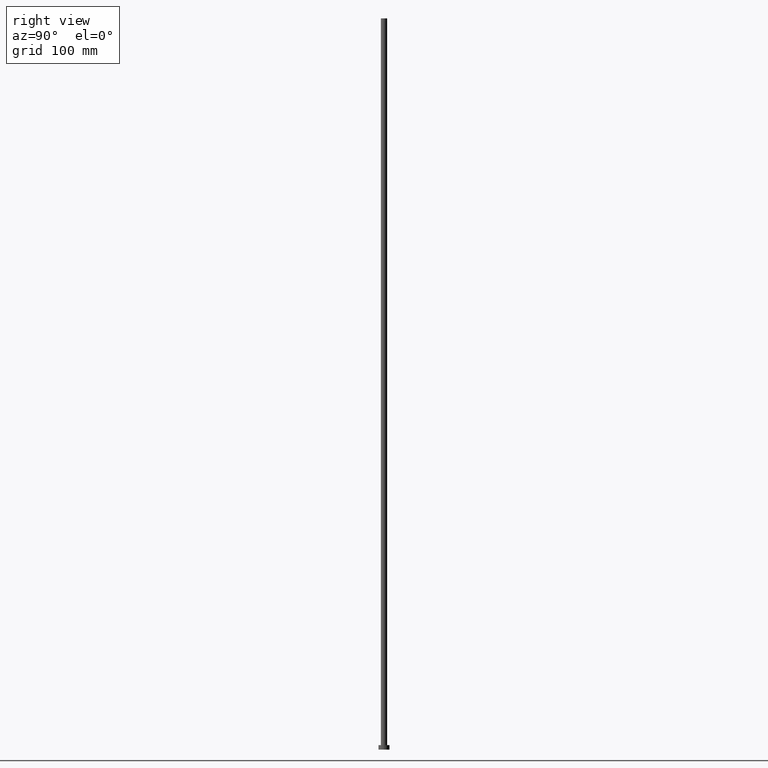
[diagram: clean part render]
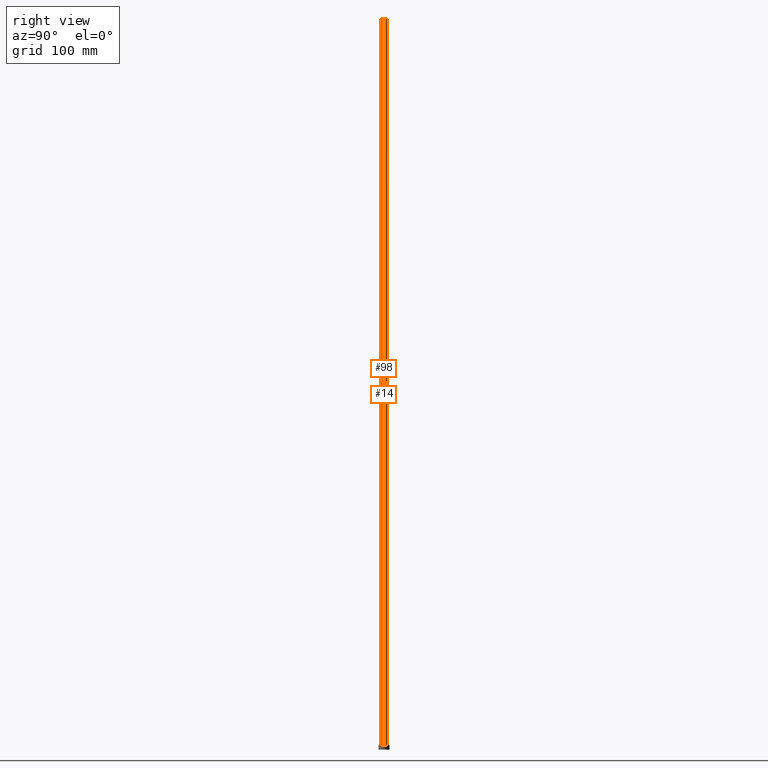
[diagram: same view with one multi-face feature highlighted, each face labeled with its STEP entity id]
A machine part, right view. The highlighted faces form ONE feature: a constant-radius fillet chain: 2 tangent blend faces with common blend radius 3.5 mm. The faces share edges in the B-rep.
Their STEP definitions:
[1] entity #98 (Cylinder):
#11 = EDGE_CURVE ( 'NONE', #70, #186, #55, .T. ) ;
#19 = CYLINDRICAL_SURFACE ( 'NONE', #106, 3.500000000000000000 ) ;
#27 = VERTEX_POINT ( 'NONE', #179 ) ;
#37 = VECTOR ( 'NONE', #173, 1000.000000000000000 ) ;
#44 = CARTESIAN_POINT ( 'NONE',  ( 3.500000000000000000, 4.286263797015736595E-16, 800.0000000000000000 ) ) ;
#55 = CIRCLE ( 'NONE', #252, 3.500000000000000000 ) ;
#62 = CARTESIAN_POINT ( 'NONE',  ( -3.500000000000000000, 0.000000000000000000, 800.0000000000000000 ) ) ;
#67 = EDGE_LOOP ( 'NONE', ( #86, #162, #113, #219 ) ) ;
#70 = VERTEX_POINT ( 'NONE', #62 ) ;
#86 = ORIENTED_EDGE ( 'NONE', *, *, #230, .F. ) ;
#91 = VECTOR ( 'NONE', #215, 1000.000000000000000 ) ;
#96 = DIRECTION ( 'NONE',  ( -0.000000000000000000, -0.000000000000000000, -1.000000000000000000 ) ) ;
#98 = ADVANCED_FACE ( 'NONE', ( #114 ), #19, .T. ) ;
#106 = AXIS2_PLACEMENT_3D ( 'NONE', #244, #96, #237 ) ;
#113 = ORIENTED_EDGE ( 'NONE', *, *, #149, .T. ) ;
#114 = FACE_OUTER_BOUND ( 'NONE', #67, .T. ) ;
#121 = CARTESIAN_POINT ( 'NONE',  ( 3.500000000000000000, 4.286263797015736595E-16, 5.000000000000000000 ) ) ;
#123 = DIRECTION ( 'NONE',  ( 1.000000000000000000, 0.000000000000000000, 0.000000000000000000 ) ) ;
#126 = EDGE_CURVE ( 'NONE', #27, #157, #148, .T. ) ;
#136 = LINE ( 'NONE', #221, #91 ) ;
#142 = DIRECTION ( 'NONE',  ( 0.000000000000000000, 0.000000000000000000, 1.000000000000000000 ) ) ;
#148 = CIRCLE ( 'NONE', #224, 3.500000000000000000 ) ;
#149 = EDGE_CURVE ( 'NONE', #70, #27, #136, .T. ) ;
#157 = VERTEX_POINT ( 'NONE', #121 ) ;
#162 = ORIENTED_EDGE ( 'NONE', *, *, #11, .F. ) ;
#165 = DIRECTION ( 'NONE',  ( 0.000000000000000000, 0.000000000000000000, 1.000000000000000000 ) ) ;
#173 = DIRECTION ( 'NONE',  ( -0.000000000000000000, -0.000000000000000000, -1.000000000000000000 ) ) ;
#179 = CARTESIAN_POINT ( 'NONE',  ( -3.500000000000000000, 0.000000000000000000, 5.000000000000000000 ) ) ;
#186 = VERTEX_POINT ( 'NONE', #236 ) ;
#199 = CARTESIAN_POINT ( 'NONE',  ( 0.000000000000000000, 0.000000000000000000, 5.000000000000000000 ) ) ;
#210 = LINE ( 'NONE', #44, #37 ) ;
#215 = DIRECTION ( 'NONE',  ( -0.000000000000000000, -0.000000000000000000, -1.000000000000000000 ) ) ;
#219 = ORIENTED_EDGE ( 'NONE', *, *, #126, .T. ) ;
#221 = CARTESIAN_POINT ( 'NONE',  ( -3.500000000000000000, 0.000000000000000000, 800.0000000000000000 ) ) ;
#224 = AXIS2_PLACEMENT_3D ( 'NONE', #199, #142, #123 ) ;
#230 = EDGE_CURVE ( 'NONE', #186, #157, #210, .T. ) ;
#236 = CARTESIAN_POINT ( 'NONE',  ( 3.500000000000000000, 4.286263797015736595E-16, 800.0000000000000000 ) ) ;
#237 = DIRECTION ( 'NONE',  ( -1.000000000000000000, 0.000000000000000000, 0.000000000000000000 ) ) ;
#243 = CARTESIAN_POINT ( 'NONE',  ( 0.000000000000000000, 0.000000000000000000, 800.0000000000000000 ) ) ;
#244 = CARTESIAN_POINT ( 'NONE',  ( 0.000000000000000000, 0.000000000000000000, 800.0000000000000000 ) ) ;
#250 = DIRECTION ( 'NONE',  ( 1.000000000000000000, 0.000000000000000000, 0.000000000000000000 ) ) ;
#252 = AXIS2_PLACEMENT_3D ( 'NONE', #243, #165, #250 ) ;
[2] entity #14 (Cylinder):
#8 = ORIENTED_EDGE ( 'NONE', *, *, #230, .T. ) ;
#14 = ADVANCED_FACE ( 'NONE', ( #131 ), #15, .T. ) ;
#15 = CYLINDRICAL_SURFACE ( 'NONE', #156, 3.500000000000000000 ) ;
#18 = EDGE_CURVE ( 'NONE', #186, #70, #192, .T. ) ;
#21 = CARTESIAN_POINT ( 'NONE',  ( 0.000000000000000000, 0.000000000000000000, 5.000000000000000000 ) ) ;
#26 = DIRECTION ( 'NONE',  ( 1.000000000000000000, 0.000000000000000000, 0.000000000000000000 ) ) ;
#27 = VERTEX_POINT ( 'NONE', #179 ) ;
#37 = VECTOR ( 'NONE', #173, 1000.000000000000000 ) ;
#44 = CARTESIAN_POINT ( 'NONE',  ( 3.500000000000000000, 4.286263797015736595E-16, 800.0000000000000000 ) ) ;
#47 = EDGE_LOOP ( 'NONE', ( #242, #8, #225, #147 ) ) ;
#62 = CARTESIAN_POINT ( 'NONE',  ( -3.500000000000000000, 0.000000000000000000, 800.0000000000000000 ) ) ;
#63 = AXIS2_PLACEMENT_3D ( 'NONE', #21, #83, #240 ) ;
#70 = VERTEX_POINT ( 'NONE', #62 ) ;
#78 = CARTESIAN_POINT ( 'NONE',  ( 0.000000000000000000, 0.000000000000000000, 800.0000000000000000 ) ) ;
#83 = DIRECTION ( 'NONE',  ( 0.000000000000000000, 0.000000000000000000, 1.000000000000000000 ) ) ;
#91 = VECTOR ( 'NONE', #215, 1000.000000000000000 ) ;
#109 = DIRECTION ( 'NONE',  ( -0.000000000000000000, -0.000000000000000000, -1.000000000000000000 ) ) ;
#121 = CARTESIAN_POINT ( 'NONE',  ( 3.500000000000000000, 4.286263797015736595E-16, 5.000000000000000000 ) ) ;
#131 = FACE_OUTER_BOUND ( 'NONE', #47, .T. ) ;
#136 = LINE ( 'NONE', #221, #91 ) ;
#147 = ORIENTED_EDGE ( 'NONE', *, *, #149, .F. ) ;
#149 = EDGE_CURVE ( 'NONE', #70, #27, #136, .T. ) ;
#152 = EDGE_CURVE ( 'NONE', #157, #27, #184, .T. ) ;
#156 = AXIS2_PLACEMENT_3D ( 'NONE', #228, #109, #203 ) ;
#157 = VERTEX_POINT ( 'NONE', #121 ) ;
#158 = DIRECTION ( 'NONE',  ( 0.000000000000000000, 0.000000000000000000, 1.000000000000000000 ) ) ;
#173 = DIRECTION ( 'NONE',  ( -0.000000000000000000, -0.000000000000000000, -1.000000000000000000 ) ) ;
#179 = CARTESIAN_POINT ( 'NONE',  ( -3.500000000000000000, 0.000000000000000000, 5.000000000000000000 ) ) ;
#183 = AXIS2_PLACEMENT_3D ( 'NONE', #78, #158, #26 ) ;
#184 = CIRCLE ( 'NONE', #63, 3.500000000000000000 ) ;
#186 = VERTEX_POINT ( 'NONE', #236 ) ;
#192 = CIRCLE ( 'NONE', #183, 3.500000000000000000 ) ;
#203 = DIRECTION ( 'NONE',  ( -1.000000000000000000, 0.000000000000000000, 0.000000000000000000 ) ) ;
#210 = LINE ( 'NONE', #44, #37 ) ;
#215 = DIRECTION ( 'NONE',  ( -0.000000000000000000, -0.000000000000000000, -1.000000000000000000 ) ) ;
#221 = CARTESIAN_POINT ( 'NONE',  ( -3.500000000000000000, 0.000000000000000000, 800.0000000000000000 ) ) ;
#225 = ORIENTED_EDGE ( 'NONE', *, *, #152, .T. ) ;
#228 = CARTESIAN_POINT ( 'NONE',  ( 0.000000000000000000, 0.000000000000000000, 800.0000000000000000 ) ) ;
#230 = EDGE_CURVE ( 'NONE', #186, #157, #210, .T. ) ;
#236 = CARTESIAN_POINT ( 'NONE',  ( 3.500000000000000000, 4.286263797015736595E-16, 800.0000000000000000 ) ) ;
#240 = DIRECTION ( 'NONE',  ( 1.000000000000000000, 0.000000000000000000, 0.000000000000000000 ) ) ;
#242 = ORIENTED_EDGE ( 'NONE', *, *, #18, .F. ) ;